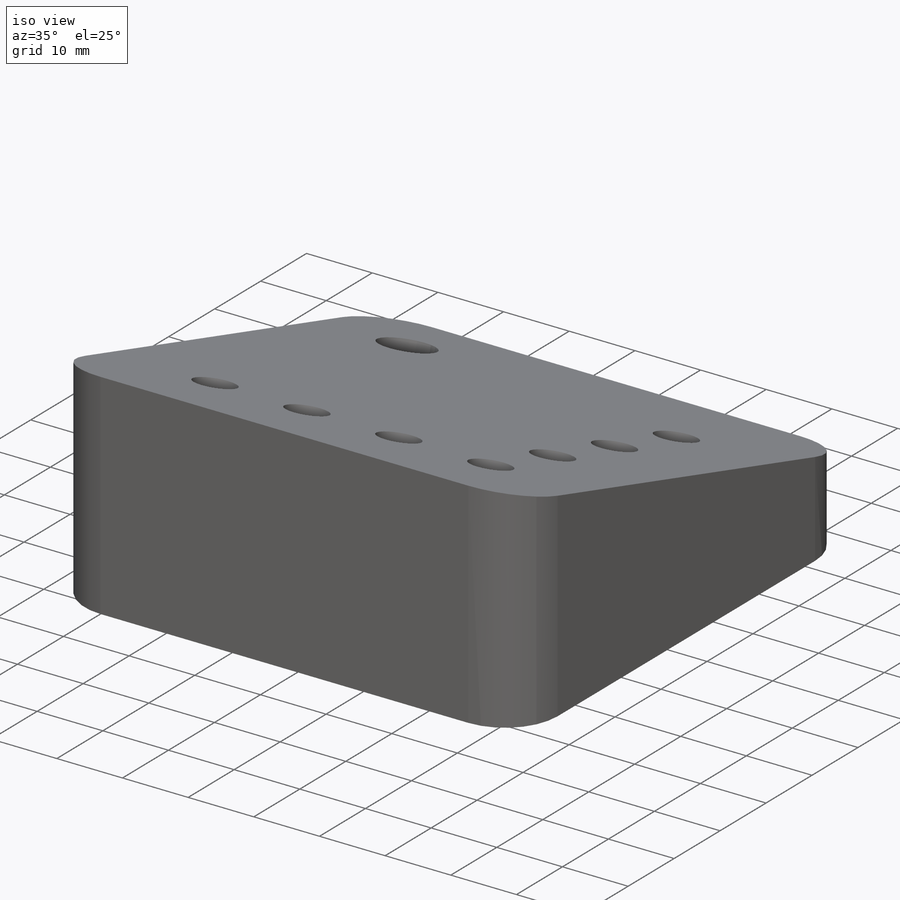
[diagram: iso view]
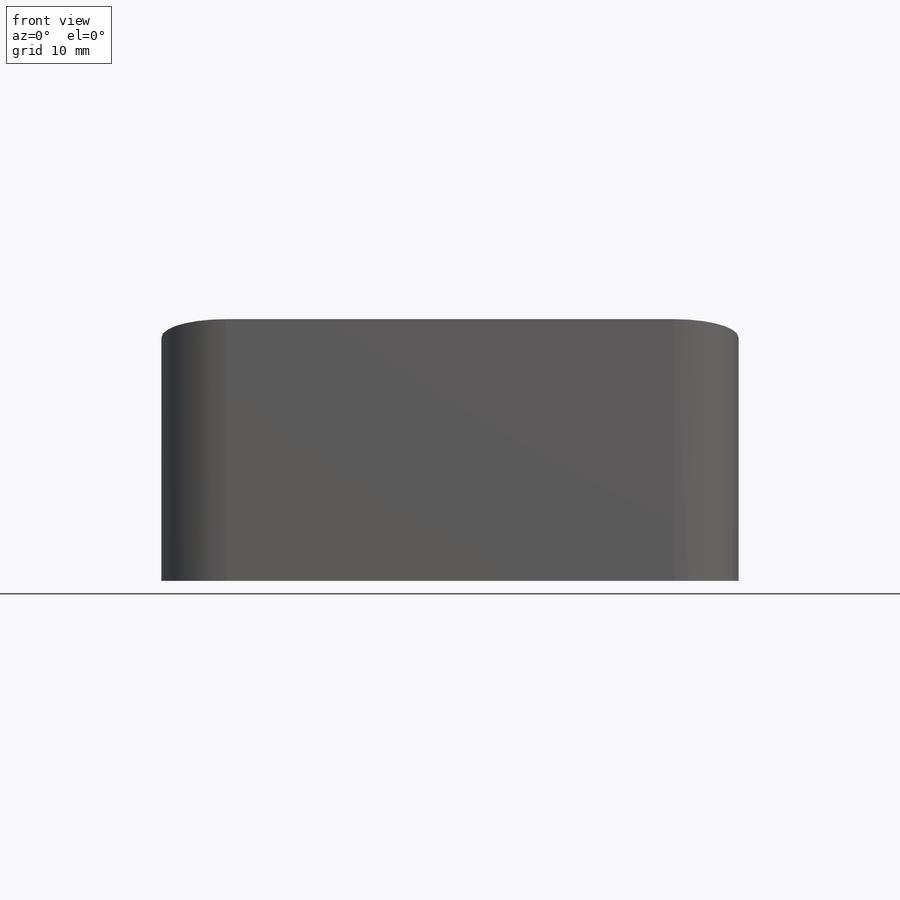
[diagram: front view]
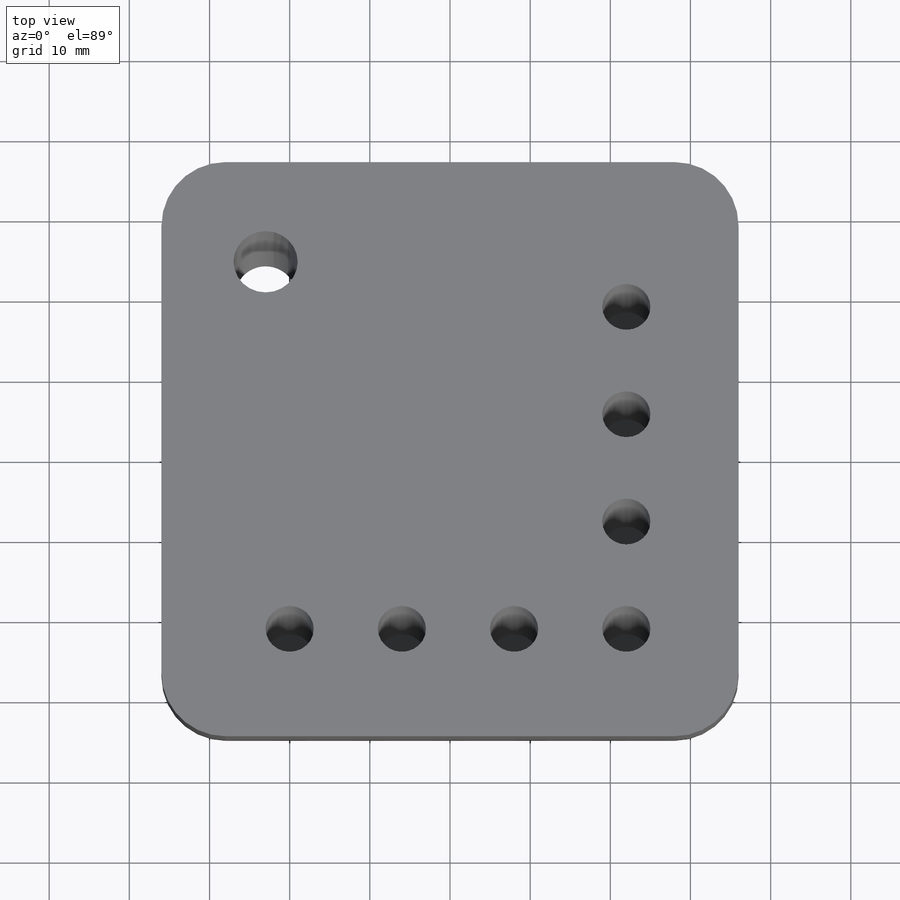
[diagram: top view]
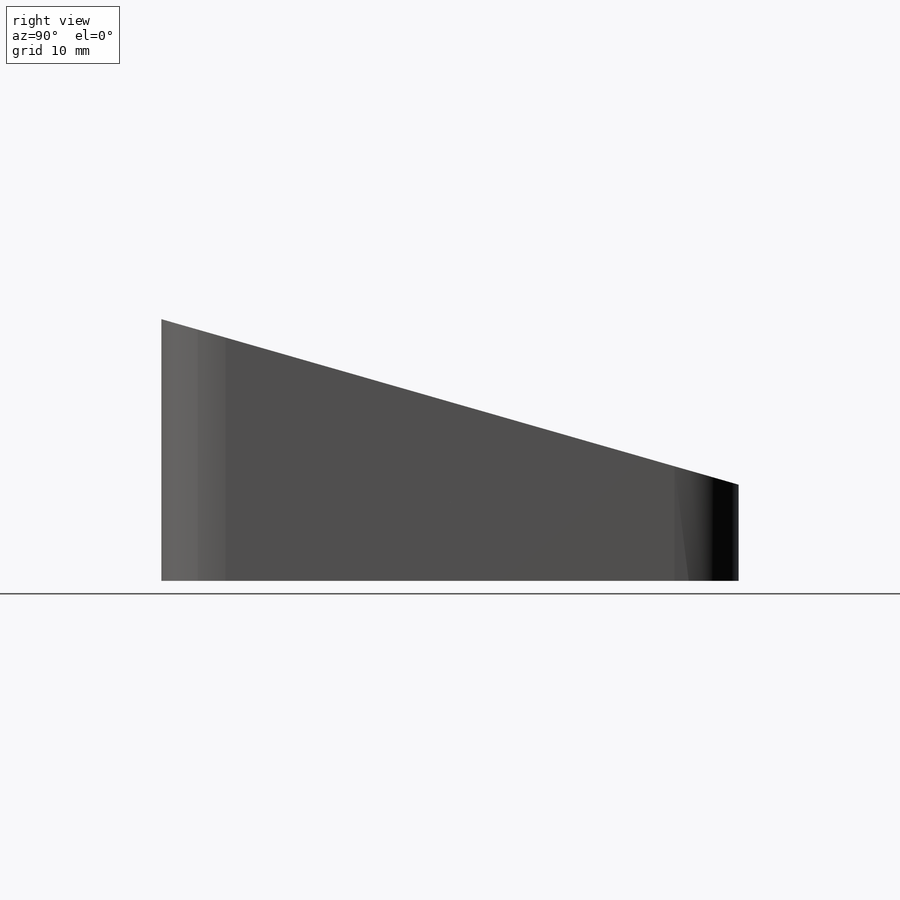
[diagram: right view]
SOLIDWORKS PART (.sldprt)
format: sldprt  version: not decoded by parser v0  size: 194,048 bytes
history: native  units: mm
features: plane x3, sketch x3, cut_extrude x2, material x1, extrude x1, fillet x1 (+10 scaffold rows collapsed)
feature tree (21):
  scaffold x10  (default folders/planes/origin — collapsed)
  material  "6061 Alloy"
  plane  "Alzado"
  plane  "Planta"
  plane  "Vista lateral"
  sketch  "Sketch2"  dims[c1.D1=72.0mm c1.D2=~52.907919mm c2.D2=~84.282697deg c3.D2=~52.907919mm c4.D2=~66.917079deg c4.D3=12.0mm c5.D2=~66.70295mm c6.D2=16.0deg]
  extrude  "Boss-Extrude1"  Depth=72mm
  fillet  "Fillet2"  Radius=8mm
  sketch  "Sketch3"  dims[c1.D1=16.0mm c1.D2=16.0mm c1.D3=~5.165618mm c1.D7=6.0mm c1.D11=8.0mm c2.D1=13.0mm c2.D2=13.0mm c2.14=14.0mm c2.D3=14.0mm c2.D4=14.0mm c2.D5=14.0mm c2.D6=14.0mm c2.D8=14.0mm c2.D9=14.0mm c2.D10=14.0mm c2.D12=14.0mm]
  sketch  "Sketch4"  dims[D1=8.0mm D2=13.0mm D3=13.0mm]
  cut_extrude  "Cut-Extrude2"  [1 undecoded]
  cut_extrude  "Cut-Extrude3"  Depth=12mm
decode coverage: 6 of 7 modeling features carry decoded parameters
note: ~ marks probable driven/reference dimensions
note: 1 parameter value undecoded
note: suppression state not decoded; provenance and decode notes live in map.json
